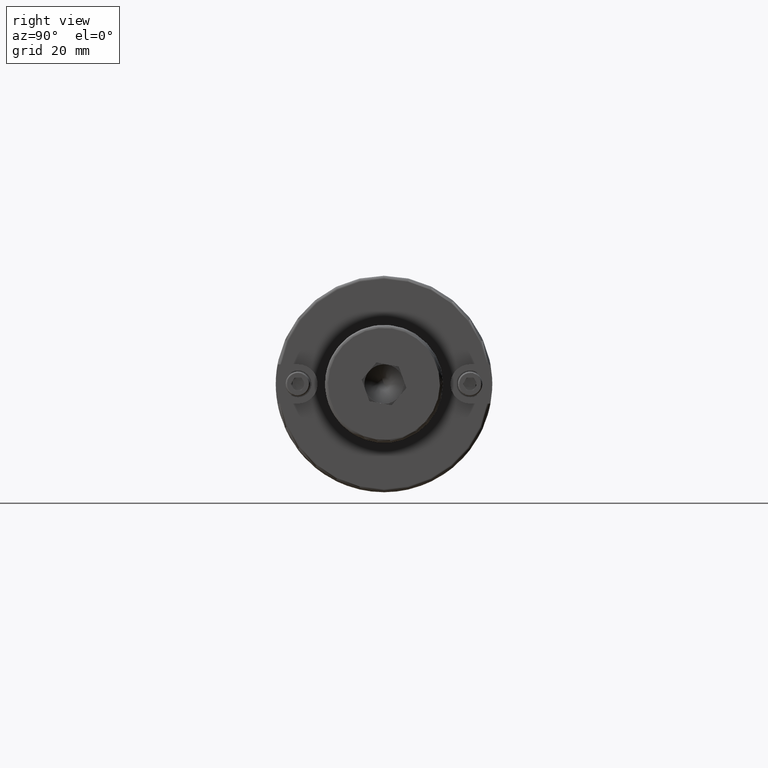
[diagram: clean part render]
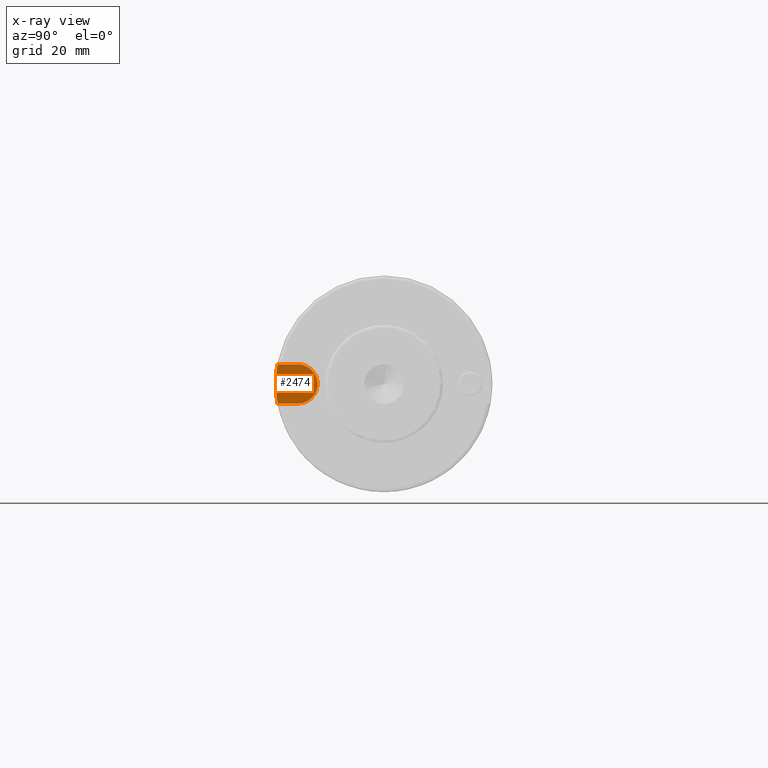
[diagram: x-ray — body ghosted, one internal face saturated and labeled with its STEP entity id]
A machine part, right view, then the same camera in x-ray: the body is ghosted and one INTERNAL B-rep face — a face not visible from any outside direction — is saturated and labeled: STEP entity #2474.
In plain terms, the highlighted planar face has unit normal (1, 0, 0).
Its self-contained STEP definition (entity closure, byte-faithful):
#174=FACE_BOUND('',#486,.T.);
#199=CIRCLE('',#2727,34.925);
#200=CIRCLE('',#2728,6.35);
#201=CIRCLE('',#2729,34.925);
#202=CIRCLE('',#2730,1.8415);
#336=FACE_OUTER_BOUND('',#485,.T.);
#485=EDGE_LOOP('',(#1653,#1654,#1655,#1656,#1657));
#486=EDGE_LOOP('',(#1658));
#660=LINE('',#3846,#821);
#662=LINE('',#3854,#823);
#821=VECTOR('',#3045,10.);
#823=VECTOR('',#3053,10.);
#1023=VERTEX_POINT('',#3843);
#1024=VERTEX_POINT('',#3845);
#1025=VERTEX_POINT('',#3849);
#1026=VERTEX_POINT('',#3851);
#1027=VERTEX_POINT('',#3853);
#1028=VERTEX_POINT('',#3856);
#1273=EDGE_CURVE('',#1023,#1024,#660,.T.);
#1275=EDGE_CURVE('',#1024,#1025,#199,.T.);
#1276=EDGE_CURVE('',#1026,#1023,#200,.T.);
#1277=EDGE_CURVE('',#1027,#1026,#662,.T.);
#1278=EDGE_CURVE('',#1025,#1027,#201,.T.);
#1279=EDGE_CURVE('',#1028,#1028,#202,.T.);
#1653=ORIENTED_EDGE('',*,*,#1275,.F.);
#1654=ORIENTED_EDGE('',*,*,#1273,.F.);
#1655=ORIENTED_EDGE('',*,*,#1276,.F.);
#1656=ORIENTED_EDGE('',*,*,#1277,.F.);
#1657=ORIENTED_EDGE('',*,*,#1278,.F.);
#1658=ORIENTED_EDGE('',*,*,#1279,.F.);
#2405=PLANE('',#2726);
#2474=ADVANCED_FACE('',(#336,#174),#2405,.T.);
#2726=AXIS2_PLACEMENT_3D('',#3848,#3047,#3048);
#2727=AXIS2_PLACEMENT_3D('',#3850,#3049,#3050);
#2728=AXIS2_PLACEMENT_3D('',#3852,#3051,#3052);
#2729=AXIS2_PLACEMENT_3D('',#3855,#3054,#3055);
#2730=AXIS2_PLACEMENT_3D('',#3857,#3056,#3057);
#3045=DIRECTION('',(0.,-1.,1.22464679914735E-16));
#3047=DIRECTION('center_axis',(1.,0.,0.));
#3048=DIRECTION('ref_axis',(0.,1.22464679914735E-16,1.));
#3049=DIRECTION('center_axis',(-1.,0.,0.));
#3050=DIRECTION('ref_axis',(0.,1.,0.));
#3051=DIRECTION('center_axis',(-1.,0.,0.));
#3052=DIRECTION('ref_axis',(0.,-1.22464679914735E-16,-1.));
#3053=DIRECTION('',(0.,1.,-1.22464679914735E-16));
#3054=DIRECTION('center_axis',(-1.,0.,0.));
#3055=DIRECTION('ref_axis',(0.,1.,0.));
#3056=DIRECTION('center_axis',(1.,0.,0.));
#3057=DIRECTION('ref_axis',(0.,1.22464679914735E-16,1.));
#3843=CARTESIAN_POINT('',(95.25,-27.775,-6.35));
#3845=CARTESIAN_POINT('',(95.25,-34.3428758987945,-6.35));
#3846=CARTESIAN_POINT('',(95.25,-39.925,-6.35));
#3848=CARTESIAN_POINT('Origin',(95.25,-30.675,3.75660405638451E-15));
#3849=CARTESIAN_POINT('',(95.25,-34.925,-4.27707894602213E-15));
#3850=CARTESIAN_POINT('Origin',(95.25,0.,0.));
#3851=CARTESIAN_POINT('',(95.25,-27.775,6.35));
#3852=CARTESIAN_POINT('Origin',(95.25,-27.775,3.40145648463177E-15));
#3853=CARTESIAN_POINT('',(95.25,-34.3428758987945,6.35));
#3854=CARTESIAN_POINT('',(95.25,-27.775,6.35));
#3855=CARTESIAN_POINT('Origin',(95.25,0.,0.));
#3856=CARTESIAN_POINT('',(95.25,-27.775,-1.8415));
#3857=CARTESIAN_POINT('Origin',(95.25,-27.775,3.40145648463177E-15));